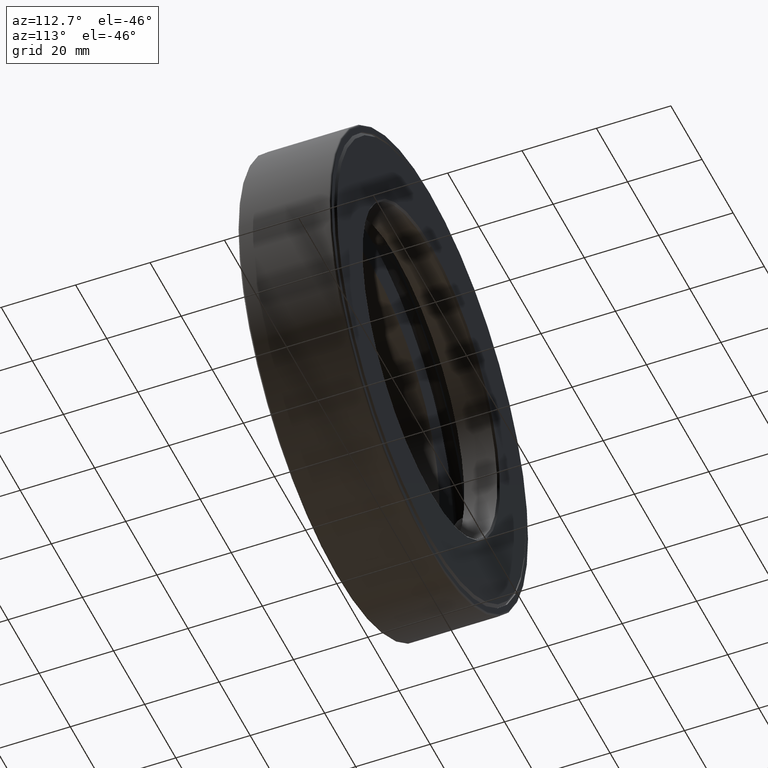
[diagram: clean part render]
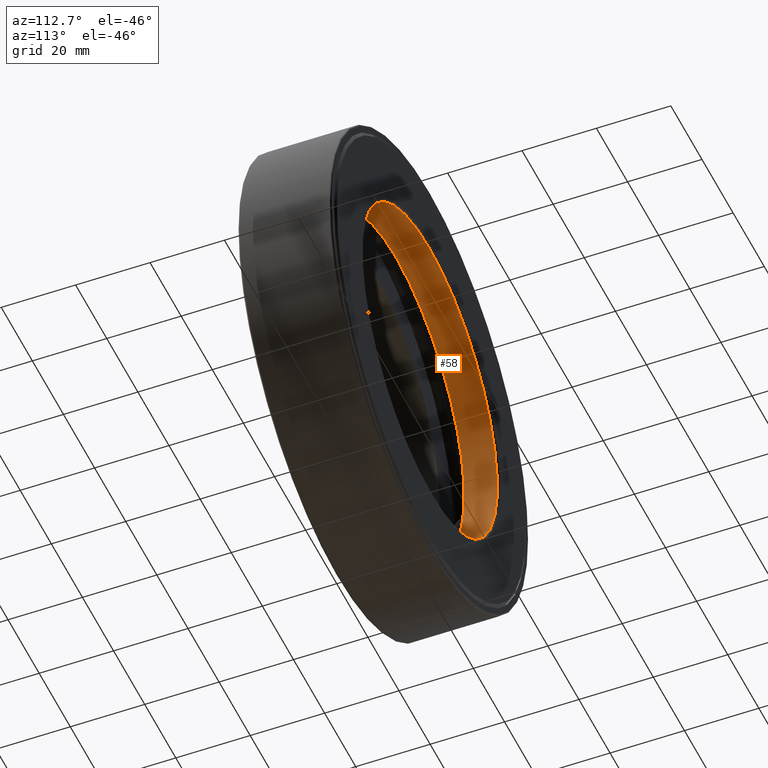
[diagram: same view with one face highlighted and labeled with its STEP entity id]
A machine part, auxiliary view. The second image highlights one B-rep face of the part: STEP entity #58.
In plain terms, the highlighted cylindrical surface (bore or boss wall) has radius 43.6563 mm, axis along (-0, 1, -0).
Its self-contained STEP definition (entity closure, byte-faithful):
#38 = CIRCLE ( 'NONE', #428, 1.718750000000000400 ) ;
#40 = EDGE_LOOP ( 'NONE', ( #51 ) ) ;
#51 = ORIENTED_EDGE ( 'NONE', *, *, #373, .T. ) ;
#58 = ADVANCED_FACE ( 'NONE', ( #584, #408 ), #285, .F. ) ;
#69 = VERTEX_POINT ( 'NONE', #405 ) ;
#140 = EDGE_LOOP ( 'NONE', ( #287 ) ) ;
#145 = AXIS2_PLACEMENT_3D ( 'NONE', #420, #414, #559 ) ;
#174 = CARTESIAN_POINT ( 'NONE',  ( 0.0000000000000000000, 0.6312499999999999800, 1.718750000000000400 ) ) ;
#237 = DIRECTION ( 'NONE',  ( -0.0000000000000000000, 1.000000000000000000, -0.0000000000000000000 ) ) ;
#268 = CIRCLE ( 'NONE', #424, 1.718750000000000400 ) ;
#285 = CYLINDRICAL_SURFACE ( 'NONE', #145, 1.718750000000000400 ) ;
#287 = ORIENTED_EDGE ( 'NONE', *, *, #406, .F. ) ;
#341 = DIRECTION ( 'NONE',  ( -0.0000000000000000000, 1.000000000000000000, -0.0000000000000000000 ) ) ;
#373 = EDGE_CURVE ( 'NONE', #69, #69, #268, .T. ) ;
#405 = CARTESIAN_POINT ( 'NONE',  ( 0.0000000000000000000, 0.9799999999999995400, 1.718750000000000400 ) ) ;
#406 = EDGE_CURVE ( 'NONE', #600, #600, #38, .T. ) ;
#408 = FACE_OUTER_BOUND ( 'NONE', #140, .T. ) ;
#414 = DIRECTION ( 'NONE',  ( -0.0000000000000000000, 1.000000000000000000, -0.0000000000000000000 ) ) ;
#420 = CARTESIAN_POINT ( 'NONE',  ( 0.0000000000000000000, 0.0000000000000000000, 0.0000000000000000000 ) ) ;
#424 = AXIS2_PLACEMENT_3D ( 'NONE', #438, #341, #533 ) ;
#428 = AXIS2_PLACEMENT_3D ( 'NONE', #491, #237, #585 ) ;
#438 = CARTESIAN_POINT ( 'NONE',  ( 0.0000000000000000000, 0.9799999999999995400, 0.0000000000000000000 ) ) ;
#491 = CARTESIAN_POINT ( 'NONE',  ( 0.0000000000000000000, 0.6312499999999999800, 0.0000000000000000000 ) ) ;
#533 = DIRECTION ( 'NONE',  ( 0.0000000000000000000, 0.0000000000000000000, 1.000000000000000000 ) ) ;
#559 = DIRECTION ( 'NONE',  ( 0.0000000000000000000, 0.0000000000000000000, 1.000000000000000000 ) ) ;
#584 = FACE_OUTER_BOUND ( 'NONE', #40, .T. ) ;
#585 = DIRECTION ( 'NONE',  ( 0.0000000000000000000, 0.0000000000000000000, 1.000000000000000000 ) ) ;
#600 = VERTEX_POINT ( 'NONE', #174 ) ;